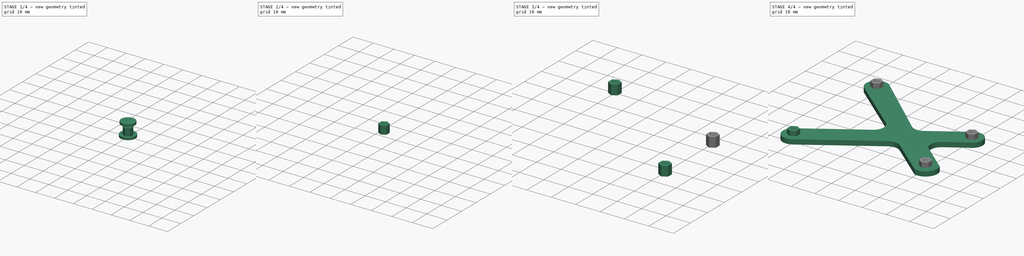
[diagram: build sequence overview — one tinted view per stage of 4, left to right]
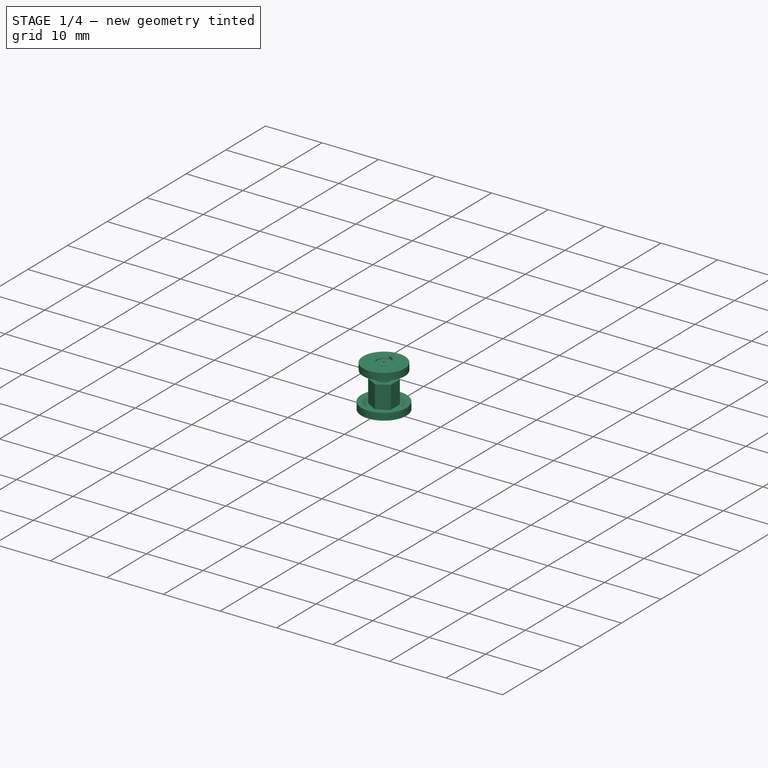
[diagram: stage 1 of 4 — iso view after this stage's code; geometry added in this stage tinted green]
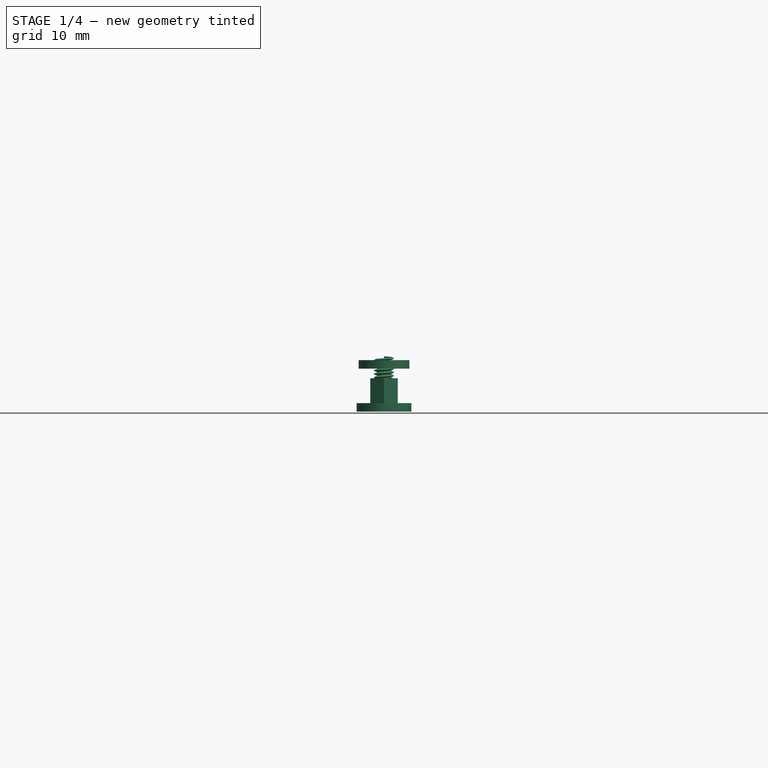
[diagram: stage 1 of 4 — front view after this stage's code; geometry added in this stage tinted green]
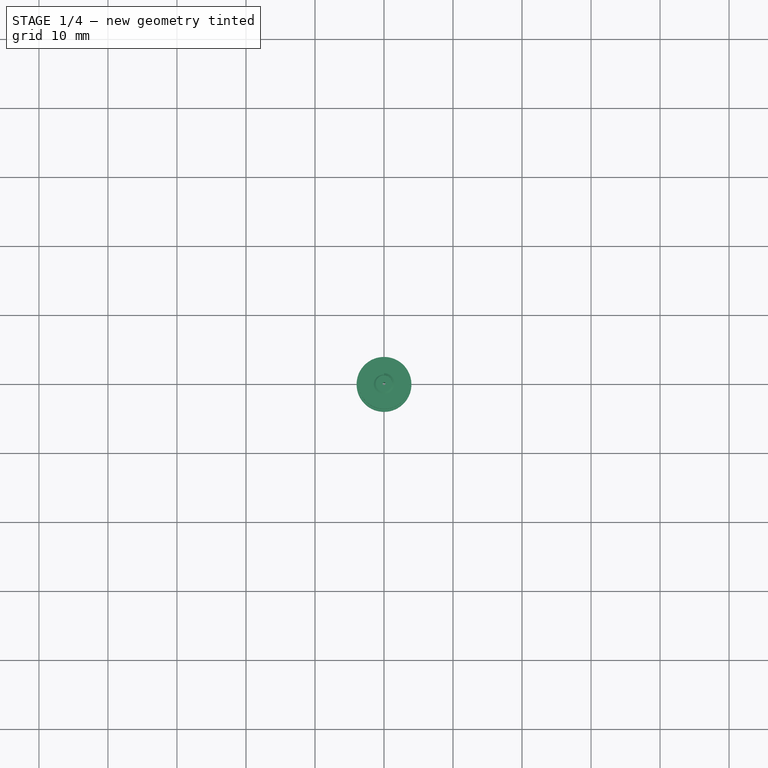
[diagram: stage 1 of 4 — top view after this stage's code; geometry added in this stage tinted green]
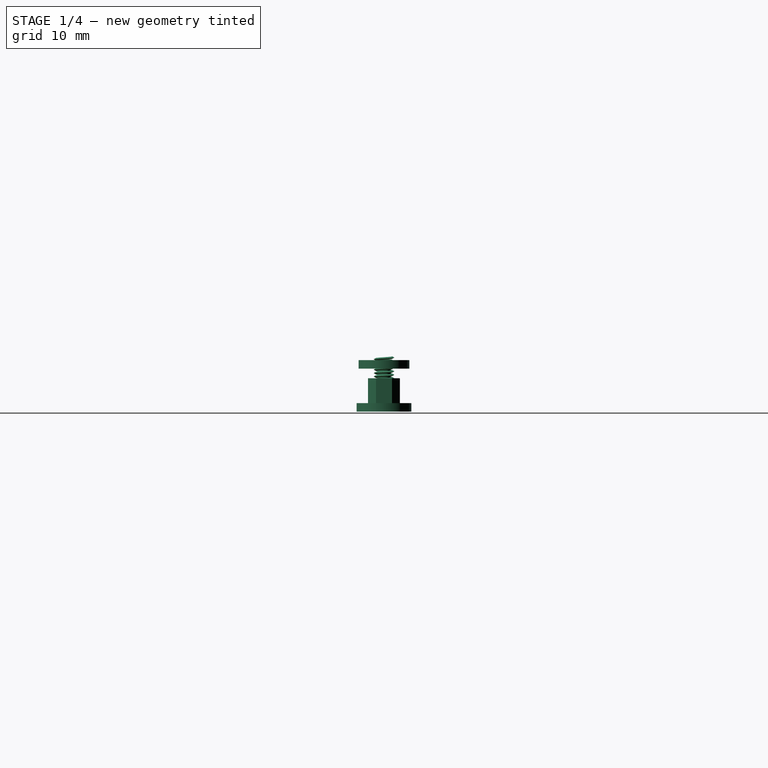
[diagram: stage 1 of 4 — right view after this stage's code; geometry added in this stage tinted green]
FCSTD DOCUMENT  (FreeCAD 0.14R3703 (Git))
Label: support_arduino_uno
License: CC-BY 3.0
LicenseURL: http://creativecommons.org/licenses/by/3.0/
objects: Sketcher::SketchObject×4, Part::FeaturePython×3, PartDesign::Pad×2, Part::Cut×2, Part::MultiFuse×2, Part::Helix×1, Part::Sweep×1, PartDesign::Revolution×1
note: 19 computed .brp shape members not serialized (recipe doc carries the construction recipe); baked Part::Feature solids carry a one-line shape summary decoded from their .brp

FEATURE [Sketcher::SketchObject] Sketch
  sketch-geometry (7):
    g0: LineSegment StartX=-2 StartY=1.1547 StartZ=0 EndX=-2 EndY=-1.1547 EndZ=0
    g1: LineSegment StartX=-2 StartY=-1.1547 StartZ=0 EndX=0 EndY=-2.3094 EndZ=0
    g2: LineSegment StartX=0 StartY=-2.3094 StartZ=0 EndX=2 EndY=-1.1547 EndZ=0
    g3: LineSegment StartX=2 StartY=-1.1547 StartZ=0 EndX=2 EndY=1.1547 EndZ=0
    g4: LineSegment StartX=2 StartY=1.1547 StartZ=0 EndX=0 EndY=2.3094 EndZ=0
    g5: LineSegment StartX=0 StartY=2.3094 StartZ=0 EndX=-2 EndY=1.1547 EndZ=0
    g6: Circle CenterX=0 CenterY=0 CenterZ=0 NormalX=0 NormalY=0 NormalZ=1 Radius=1.2295
  constraints (19):
    c: Vertical(g0)
    c: Coincident(g0,g1)
    c: PointOnObject(g1,g-2)
    c: Coincident(g1,g2)
    c: Coincident(g2,g3)
    c: Vertical(g3)
    c: Coincident(g3,g4)
    c: PointOnObject(g4,g-2)
    c: Coincident(g4,g5)
    c: Coincident(g5,g0)
    c: Equal(g5,g4)
    c: Equal(g4,g3)
    c: Equal(g3,g2)
    c: Equal(g2,g1)
    c: Equal(g1,g0)
    c: Angle(g5,g4) = 2.0944
    c: Symmetric(g3,g2,g-1)
    c: Radius(g6) = 1.2295
    c: DistanceX(g3,g0) = -4
FEATURE [PartDesign::Pad] Pad
  Length = 4
  Length2 = 100
  Sketch = -> Sketch
  Type = 0
FEATURE [Sketcher::SketchObject] Sketch001
  Placement = pos=(0,0,0) rot=(0.57735,0.57735,0.57735;2.0944rad)
  sketch-geometry (3):
    g0: LineSegment StartX=1.2 StartY=0.173205 StartZ=0 EndX=1.2 EndY=-0.173205 EndZ=0
    g1: LineSegment StartX=1.2 StartY=-0.173205 StartZ=0 EndX=1.5 EndY=0 EndZ=0
    g2: LineSegment StartX=1.5 StartY=0 StartZ=0 EndX=1.2 EndY=0.173205 EndZ=0
  constraints (9):
    c: Vertical(g0)
    c: Coincident(g0,g1)
    c: Coincident(g1,g2)
    c: Coincident(g2,g0)
    c: PointOnObject(g1,g-1)
    c: DistanceX(g-1,g1) = 1.5
    c: DistanceX(g-1,g0) = 1.2
    c: Equal(g1,g2)
    c: Angle(g2,g1) = 1.0472
FEATURE [Part::Helix] Helix  label="Helice"
  Angle = 0
  Height = 7
  LocalCoord = 0
  Pitch = 0.5
  Placement = pos=(0,0,0) rot=(0,0,1;1.5708rad)
  Radius = 1.25
  Style = 1
FEATURE [Part::Sweep] Sweep
  Frenet = true
  Sections = -> [Sketch001]
  Solid = true
  Spine = -> Helix [Edge1]
  Transition = 1
FEATURE [Sketcher::SketchObject] Sketch002  label="Chanfrein"
  Placement = pos=(0,0,0) rot=(0.57735,0.57735,0.57735;2.0944rad)
  sketch-geometry (14):
    g0: LineSegment StartX=3.67088 StartY=5.39785 StartZ=0 EndX=3.02955 EndY=5.39785 EndZ=0
    g1: LineSegment StartX=3.02955 StartY=5.39785 StartZ=0 EndX=1.9 EndY=6.05 EndZ=0
    g2: LineSegment StartX=1.9 StartY=6.05 StartZ=0 EndX=1.6 EndY=6.05 EndZ=0
    g3: LineSegment StartX=1.6 StartY=6.05 StartZ=0 EndX=1 EndY=5.70359 EndZ=0
    g4: LineSegment StartX=1 StartY=5.70359 StartZ=0 EndX=1 EndY=0.34641 EndZ=0
    g5: LineSegment StartX=1 StartY=0.34641 StartZ=0 EndX=1.6 EndY=0 EndZ=0
    g6: LineSegment StartX=1.6 StartY=0 StartZ=0 EndX=2.61571 EndY=0 EndZ=0
    g7: LineSegment StartX=2.61571 StartY=0 StartZ=0 EndX=3.12664 EndY=0.403201 EndZ=0
    g8: LineSegment StartX=3.12664 StartY=0.403201 StartZ=0 EndX=3.97078 EndY=0.403201 EndZ=0
    g9: LineSegment StartX=3.97078 StartY=0.403201 StartZ=0 EndX=3.97078 EndY=-0.84079 EndZ=0
    g10: LineSegment StartX=3.97078 StartY=-0.84079 StartZ=0 EndX=0.2 EndY=-0.84079 EndZ=0
    g11: LineSegment StartX=0.2 StartY=-0.84079 StartZ=0 EndX=0.2 EndY=6.63426 EndZ=0
    g12: LineSegment StartX=0.2 StartY=6.63426 StartZ=0 EndX=3.67088 EndY=6.63426 EndZ=0
    g13: LineSegment StartX=3.67088 StartY=6.63426 StartZ=0 EndX=3.67088 EndY=5.39785 EndZ=0
  constraints (34):
    c: Horizontal(g0)
    c: Coincident(g0,g1)
    c: Coincident(g1,g2)
    c: Horizontal(g2)
    c: Coincident(g2,g3)
    c: Coincident(g3,g4)
    c: Vertical(g4)
    c: Coincident(g4,g5)
    c: Coincident(g5,g6)
    c: Horizontal(g6)
    c: Coincident(g6,g7)
    c: Coincident(g7,g8)
    c: Horizontal(g8)
    c: Coincident(g8,g9)
    c: Vertical(g9)
    c: Coincident(g9,g10)
    c: Horizontal(g10)
    c: Coincident(g10,g11)
    c: Vertical(g11)
    c: Coincident(g11,g12)
    c: Horizontal(g12)
    c: Coincident(g12,g13)
    c: Coincident(g13,g0)
    c: Vertical(g13)
    c: DistanceY(g-1,g1) = 6.05
    c: Angle(g-2,g3) = 2.0944
    c: DistanceX(g-1,g11) = 0.2
    c: DistanceX(g3) = 1
    c: DistanceX(g-1,g2) = 1.6
    c: DistanceX(g-1,g1) = 1.9
    c: Angle(g1,g-2) = 2.0944
    c: Angle(g5,g-2) = 2.0944
    c: DistanceX(g-1,g5) = 1.6
    c: PointOnObject(g6,g-1)
FEATURE [PartDesign::Revolution] Revolution
  Angle = 360
  Axis = (0,0,1)
  Base = (0,0,0)
  Placement = pos=(0,0,0) rot=(0.57735,0.57735,0.57735;2.0944rad)
  ReferenceAxis = -> Sketch002 [V_Axis]
  Reversed = true
  Sketch = -> Sketch002
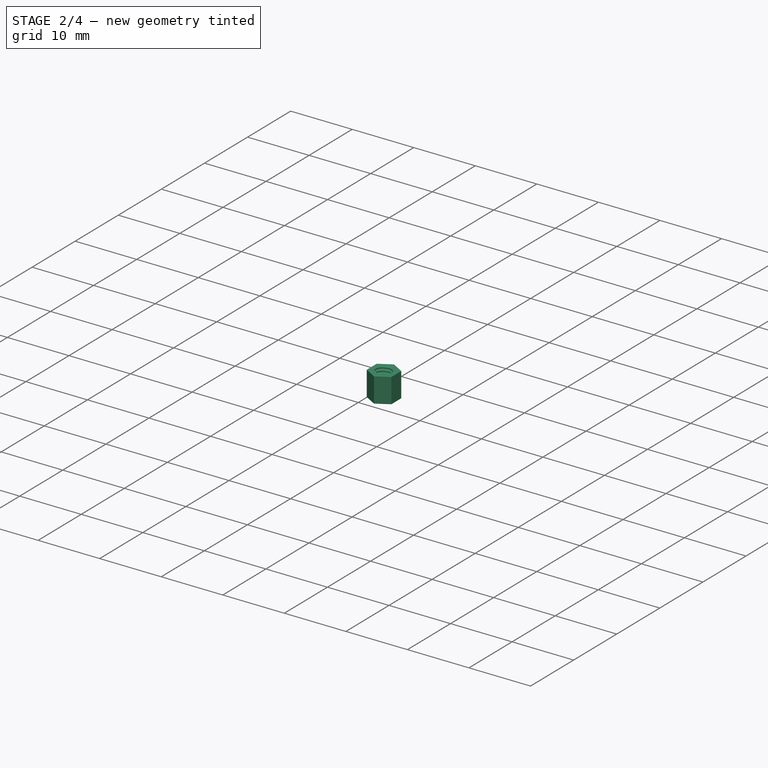
[diagram: stage 2 of 4 — iso view after this stage's code; geometry added in this stage tinted green]
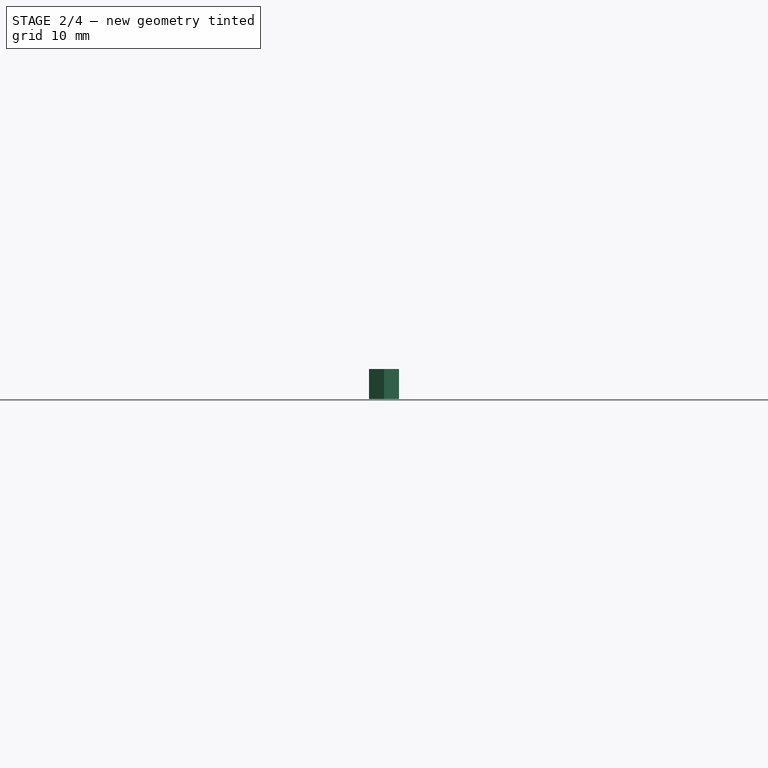
[diagram: stage 2 of 4 — front view after this stage's code; geometry added in this stage tinted green]
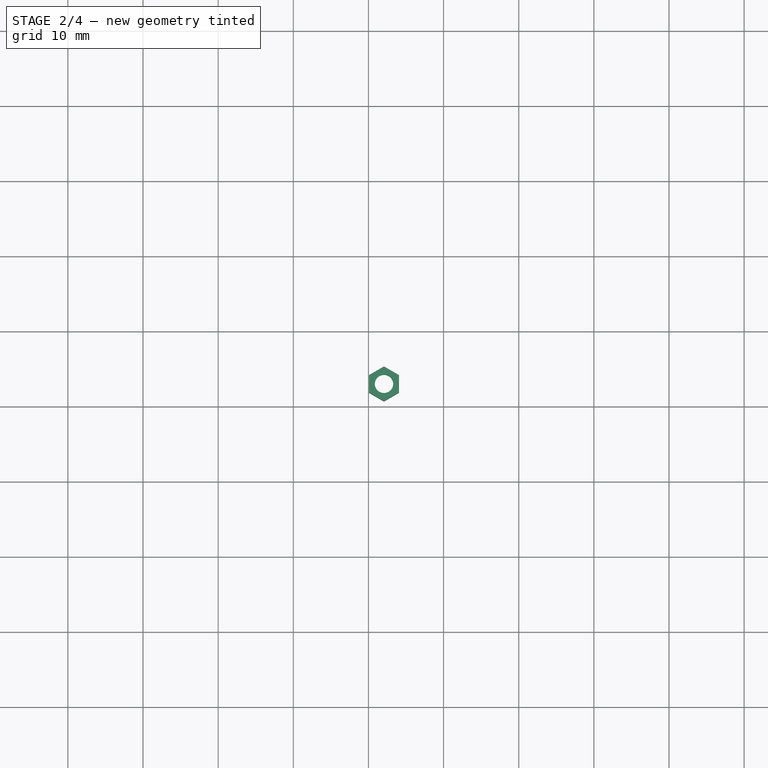
[diagram: stage 2 of 4 — top view after this stage's code; geometry added in this stage tinted green]
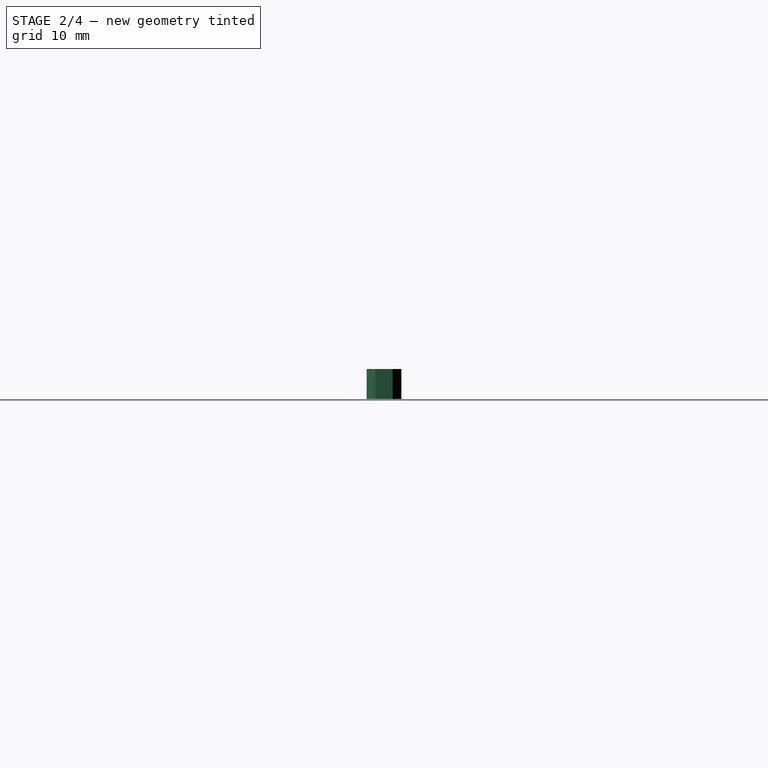
[diagram: stage 2 of 4 — right view after this stage's code; geometry added in this stage tinted green]
FEATURE [Part::Cut] Cut
  Base = -> Pad
  Tool = -> Sweep
FEATURE [Part::Cut] Cut001  label="ecrouM3"
  Base = -> Cut
  Tool = -> Revolution
FEATURE [Part::FeaturePython] Clone002  label="Clone of ecrouM3 3"  # Draft clone (typed FeaturePython)
  Objects = -> [Cut001]
  Placement = pos=(52.07,33.02,0) rot=(0,0,1;0rad)
  Scale = (1,1,1)
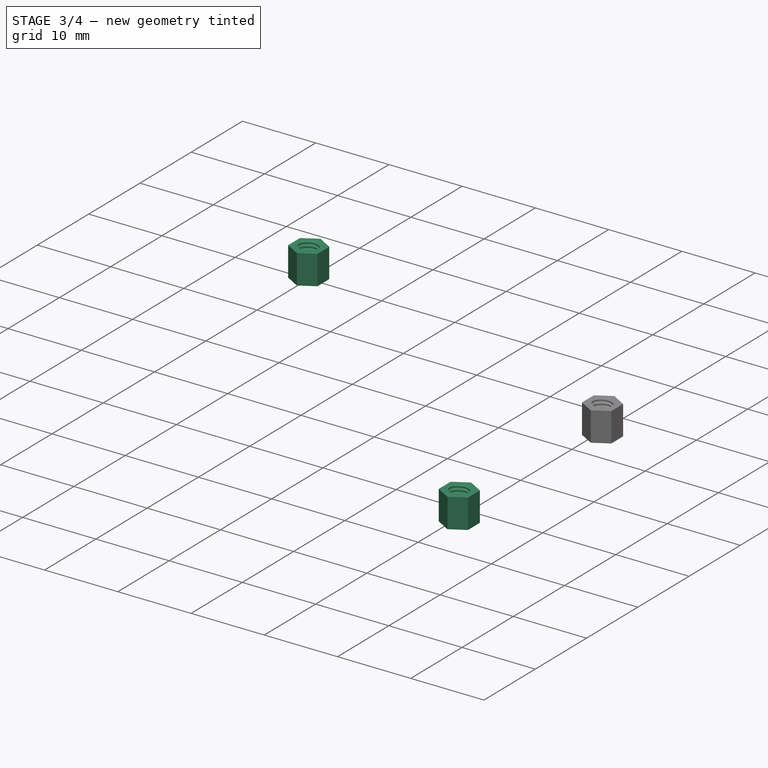
[diagram: stage 3 of 4 — iso view after this stage's code; geometry added in this stage tinted green]
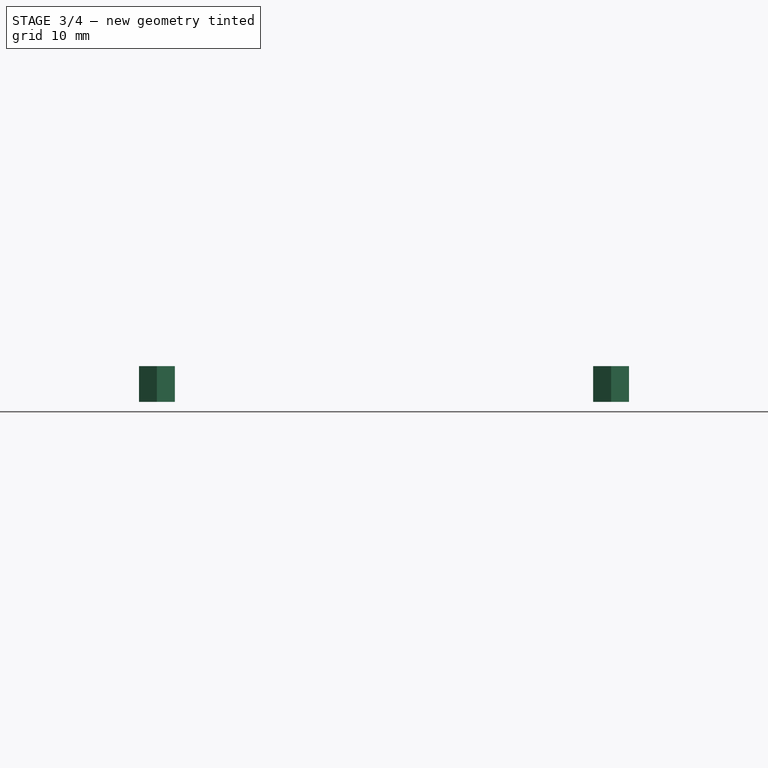
[diagram: stage 3 of 4 — front view after this stage's code; geometry added in this stage tinted green]
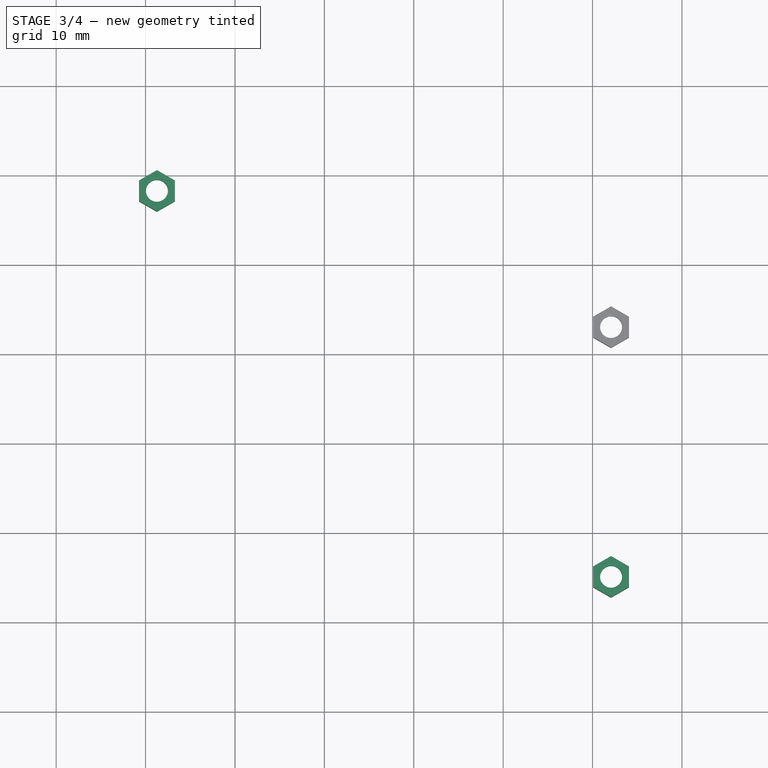
[diagram: stage 3 of 4 — top view after this stage's code; geometry added in this stage tinted green]
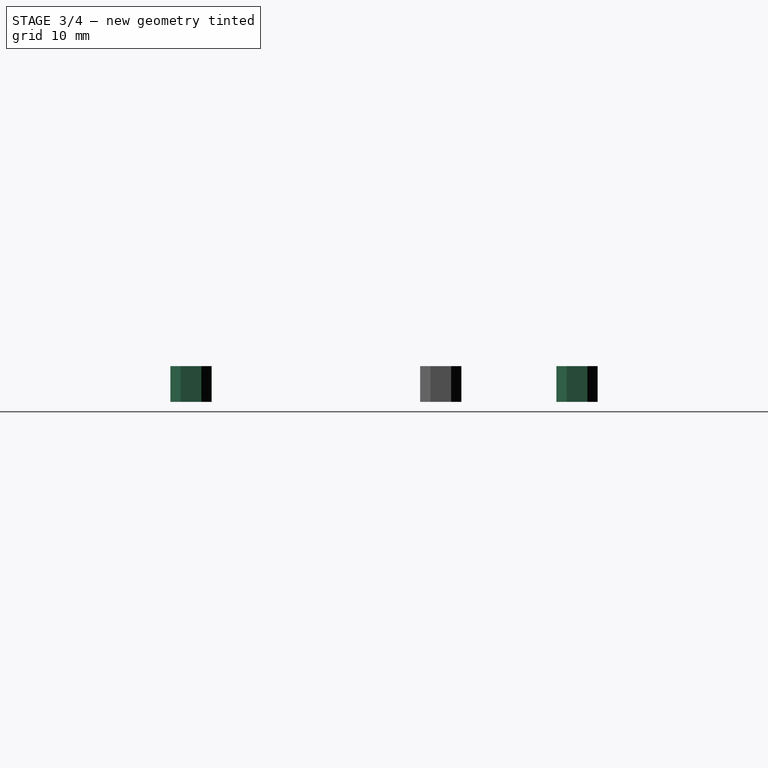
[diagram: stage 3 of 4 — right view after this stage's code; geometry added in this stage tinted green]
FEATURE [Part::FeaturePython] Clone  label="Clone of ecrouM3 1"  # Draft clone (typed FeaturePython)
  Objects = -> [Cut001]
  Placement = pos=(1.27,48.26,0) rot=(0,0,1;0rad)
  Scale = (1,1,1)
FEATURE [Part::FeaturePython] Clone001  label="Clone of ecrouM3 2"  # Draft clone (typed FeaturePython)
  Objects = -> [Cut001]
  Placement = pos=(52.07,5.08,0) rot=(0,0,1;0rad)
  Scale = (1,1,1)
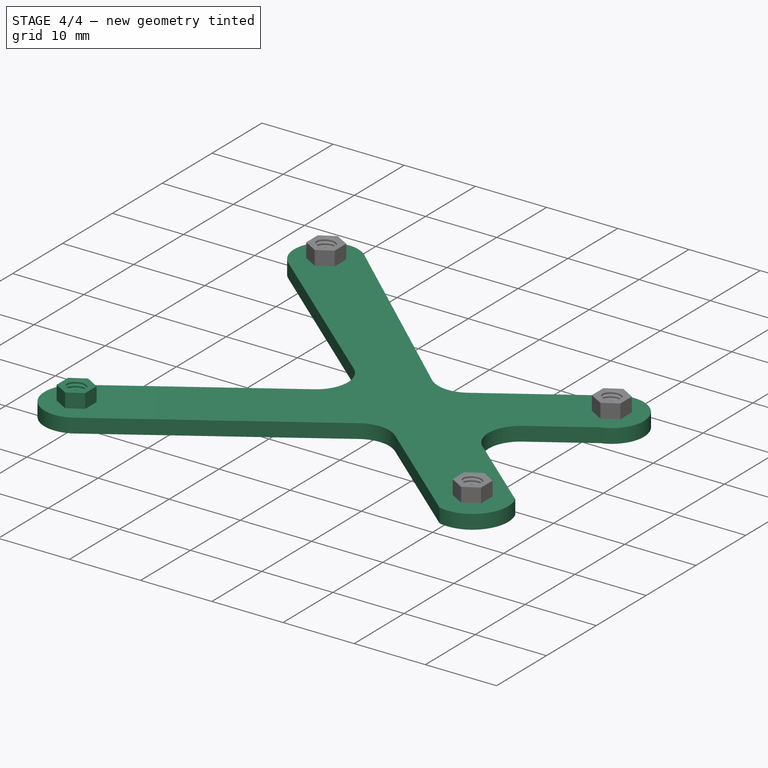
[diagram: stage 4 of 4 — iso view after this stage's code; geometry added in this stage tinted green]
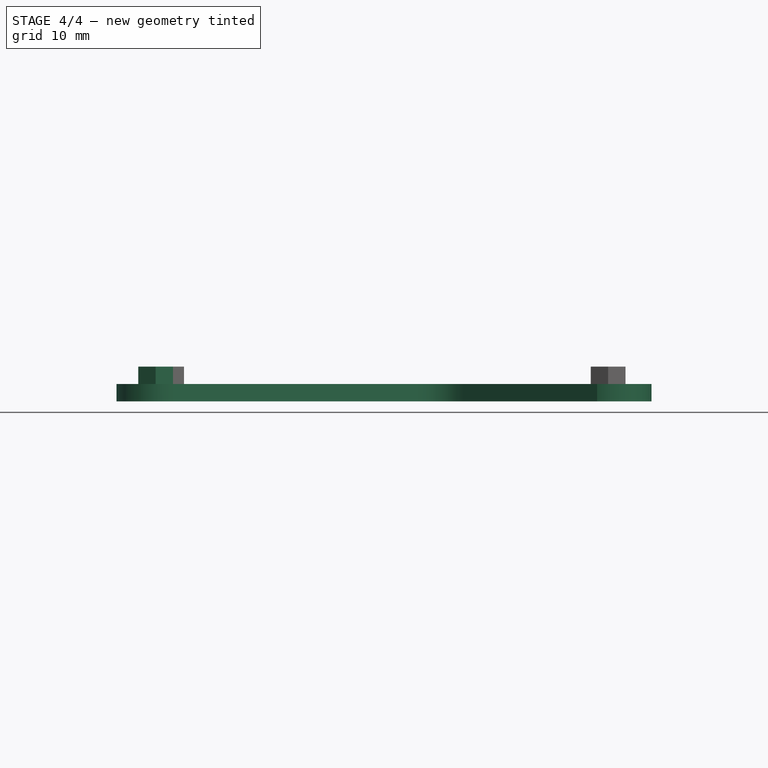
[diagram: stage 4 of 4 — front view after this stage's code; geometry added in this stage tinted green]
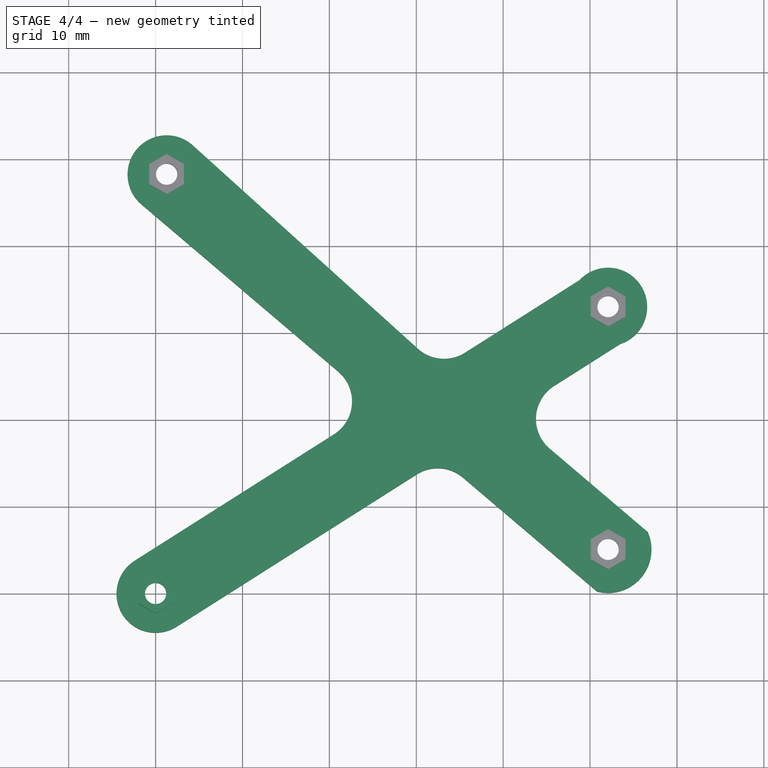
[diagram: stage 4 of 4 — top view after this stage's code; geometry added in this stage tinted green]
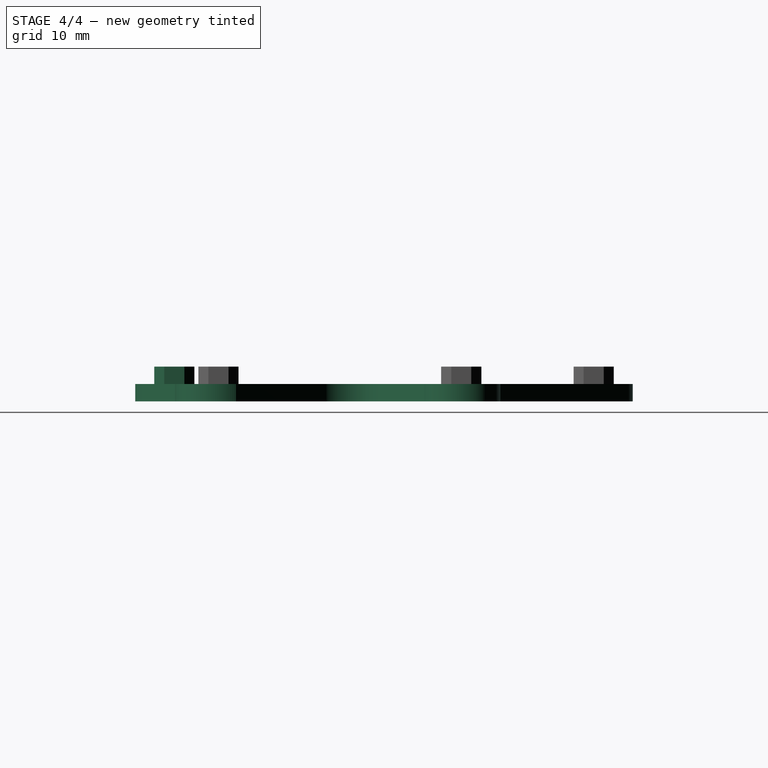
[diagram: stage 4 of 4 — right view after this stage's code; geometry added in this stage tinted green]
FEATURE [Sketcher::SketchObject] Sketch005
  sketch-geometry (22):
    g0: LineSegment StartX=-2.40975 StartY=3.80041 StartZ=0 EndX=20.5149 EndY=18.338 EndZ=0
    g1: LineSegment StartX=21.0194 StartY=25.567 StartZ=0 EndX=-1.64442 EndY=44.8313 EndZ=0
    g2: LineSegment StartX=4.18442 StartY=51.6887 StartZ=0 EndX=30.1786 EndY=28.2017 EndZ=0
    g3: LineSegment StartX=35.6055 StartY=27.7403 StartZ=0 EndX=48.7909 EndY=36.1018 EndZ=0
    g4: LineSegment StartX=53.4594 StartY=28.7399 StartZ=0 EndX=45.8611 EndY=23.9214 EndZ=0
    g5: LineSegment StartX=45.3566 StartY=16.6924 StartZ=0 EndX=56.6407 EndY=7.10086 EndZ=0
    g6: LineSegment StartX=50.8119 StartY=0.243407 StartZ=0 EndX=35.3806 EndY=13.36 EndZ=0
    g7: LineSegment StartX=30.0563 StartY=13.7315 StartZ=0 EndX=2.41013 EndY=-3.80017 EndZ=0
    g8: LineSegment [constr] StartX=1.27 StartY=48.26 StartZ=0 EndX=52.07 EndY=5.08 EndZ=0
    g9: LineSegment [constr] StartX=0 StartY=0 StartZ=0 EndX=52.07 EndY=33.02 EndZ=0
    g10: ArcOfCircle CenterX=1.27 CenterY=48.26 CenterZ=0 NormalX=0 NormalY=0 NormalZ=1 Radius=4.5 StartAngle=0.866303 EndAngle=4.00789
    g11: ArcOfCircle CenterX=52.07 CenterY=33.02 CenterZ=0 NormalX=0 NormalY=0 NormalZ=1 Radius=4.5 StartAngle=5.02628 EndAngle=8.67039
    g12: ArcOfCircle CenterX=52.07 CenterY=5.08 CenterZ=0 NormalX=0 NormalY=0 NormalZ=1 Radius=4.99755 StartAngle=4.45791 EndAngle=6.69948
    g13: ArcOfCircle CenterX=0 CenterY=0 CenterZ=0 NormalX=0 NormalY=0 NormalZ=1 Radius=4.5 StartAngle=2.1359 EndAngle=5.27759
    g14: ArcOfCircle CenterX=33.1955 CenterY=31.5406 CenterZ=0 NormalX=0 NormalY=0 NormalZ=1 Radius=4.5 StartAngle=3.97762 EndAngle=5.27754
    g15: ArcOfCircle CenterX=32.4662 CenterY=9.93125 CenterZ=0 NormalX=0 NormalY=0 NormalZ=1 Radius=4.5 StartAngle=0.866302 EndAngle=2.13595
    g16: ArcOfCircle CenterX=48.271 CenterY=20.1211 CenterZ=0 NormalX=0 NormalY=0 NormalZ=1 Radius=4.5 StartAngle=2.13595 EndAngle=4.00789
    g17: ArcOfCircle CenterX=18.105 CenterY=22.1383 CenterZ=0 NormalX=0 NormalY=0 NormalZ=1 Radius=4.5 StartAngle=5.27754 EndAngle=7.14949
    g18: Circle CenterX=1.27 CenterY=48.26 CenterZ=0 NormalX=0 NormalY=0 NormalZ=1 Radius=2
    g19: Circle CenterX=52.07 CenterY=33.02 CenterZ=0 NormalX=0 NormalY=0 NormalZ=1 Radius=2
    g20: Circle CenterX=52.07 CenterY=5.08 CenterZ=0 NormalX=0 NormalY=0 NormalZ=1 Radius=2
    g21: Circle CenterX=0 CenterY=0 CenterZ=0 NormalX=0 NormalY=0 NormalZ=1 Radius=2
  constraints (54):
    c: Coincident(g10,g1)
    c: Coincident(g11,g9)
    c: Coincident(g11,g3)
    c: Coincident(g12,g8)
    c: Coincident(g12,g5)
    c: Coincident(g12,g6)
    c: Coincident(g13,g-1)
    c: Coincident(g13,g0)
    c: Coincident(g13,g7)
    c: Parallel(g0,g9)
    c: Parallel(g3,g9)
    c: Parallel(g9,g4)
    c: Parallel(g8,g6)
    c: Parallel(g9,g7)
    c: Coincident(g2,g10)
    c: Coincident(g10,g8)
    c: Coincident(g9,g-1)
    c: Coincident(g4,g11)
    c: DistanceX(g8) = 1.27
    c: DistanceY(g-1,g8) = 48.26
    c: DistanceY(g-1,g9) = 33.02
    c: DistanceY(g-1,g8) = 5.08
    c: DistanceX(g-1,g8) = 52.07
    c: DistanceX(g-1,g9) = 52.07
    c: Symmetric(g3,g4,g9)
    c: Symmetric(g0,g7,g9)
    c: Symmetric(g5,g6,g8)
    c: Radius(g11) = 4.5
    c: Radius(g10) = 4.5
    c: Radius(g13) = 4.5
    c: Distance(g1,g8) = 4.5
    c: Distance(g2,g8) = 4.5
    c: Tangent(g2,g14)
    c: Tangent(g3,g14)
    c: Tangent(g7,g15)
    c: Tangent(g6,g15)
    c: Tangent(g5,g16)
    c: Tangent(g4,g16)
    c: Tangent(g0,g17)
    c: Tangent(g1,g17)
    c: Radius(g14) = 4.5
    c: Radius(g17) = 4.5
    c: Radius(g15) = 4.5
    c: Radius(g16) = 4.5
    c: Parallel(g1,g8)
    c: Coincident(g18,g8)
    c: Radius(g18) = 2
    c: Radius(g19) = 2
    c: Coincident(g20,g8)
    c: Radius(g20) = 2
    c: Coincident(g21,g-1)
    c: Radius(g21) = 2
    c: Parallel(g5,g8)
    c: Distance(g5,g8) = 4.5
FEATURE [PartDesign::Pad] Pad002
  Length = 2
  Length2 = 100
  Sketch = -> Sketch005
  Type = 0
FEATURE [Part::MultiFuse] Fusion
  Shapes = -> [Cut001,Clone,Clone001,Clone002]
FEATURE [Part::MultiFuse] Fusion001  label="support_arduino_uno"
  Shapes = -> [Fusion,Pad002]
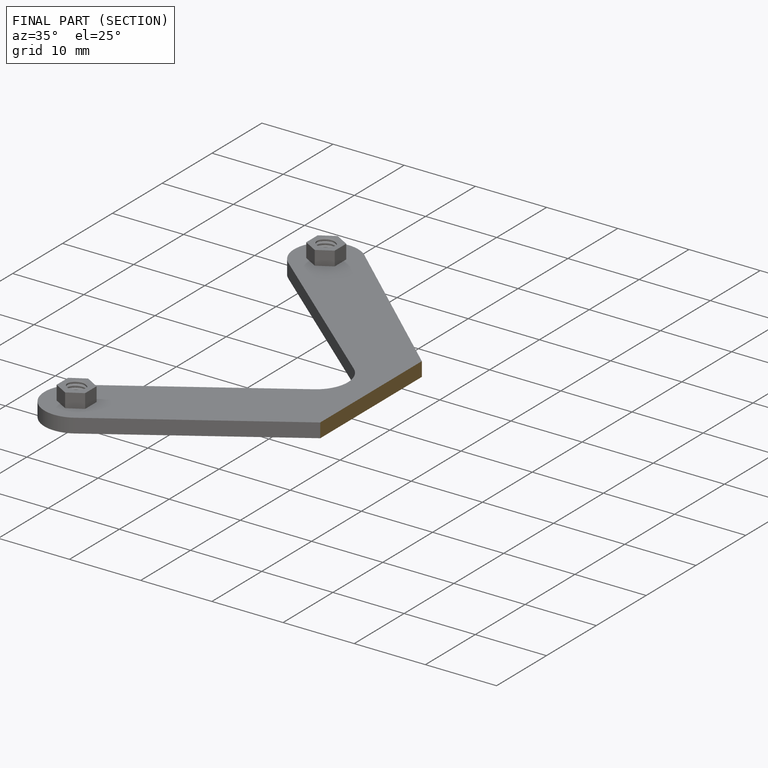
[diagram: finished part — half-section view (interior)]
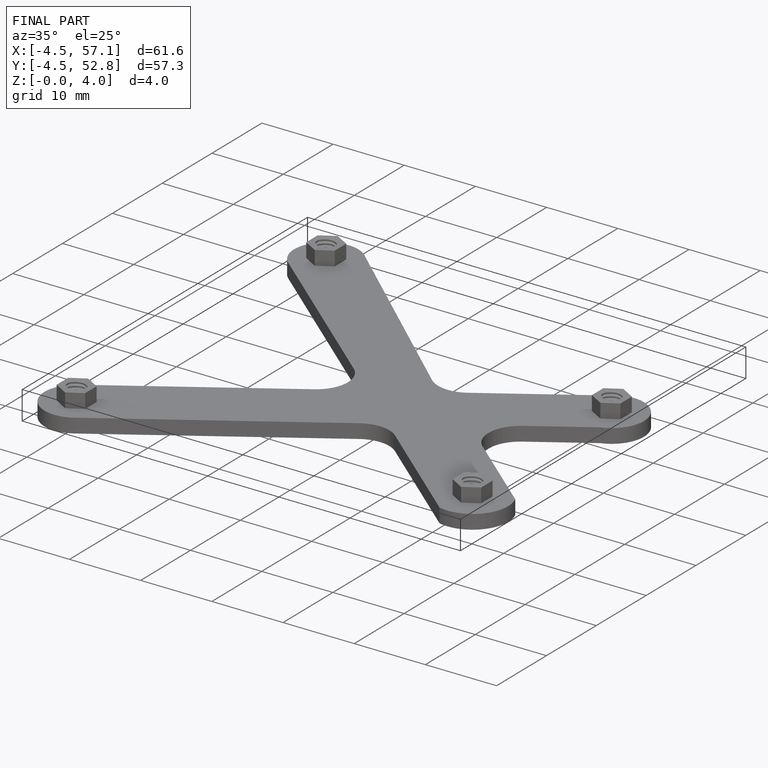
[diagram: finished part — iso view with bounding-box wireframe]
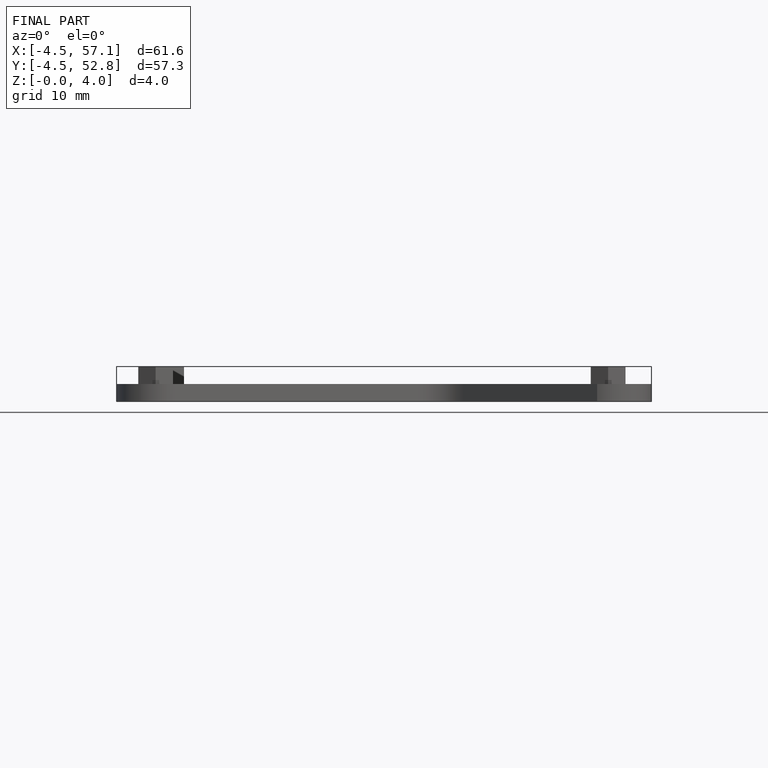
[diagram: finished part — front view with bounding-box wireframe]
